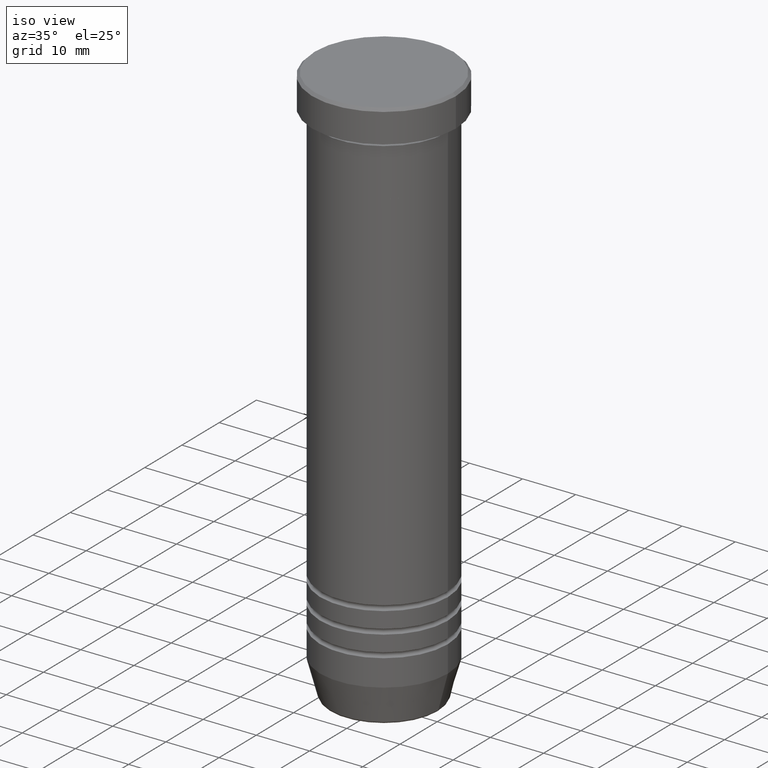
[diagram: clean part render]
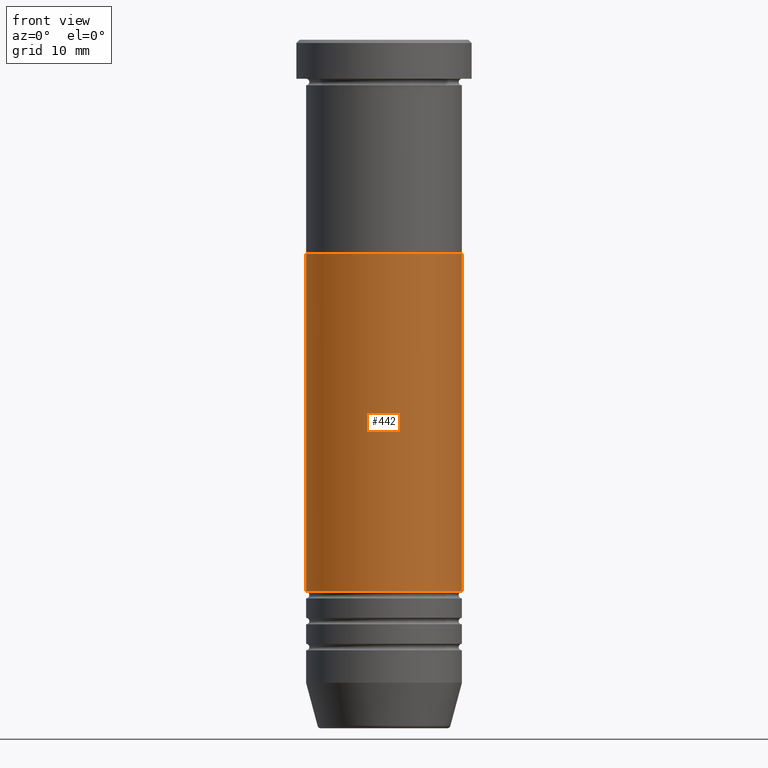
[diagram: tour spotlight — one face highlighted and labeled with its STEP entity id]
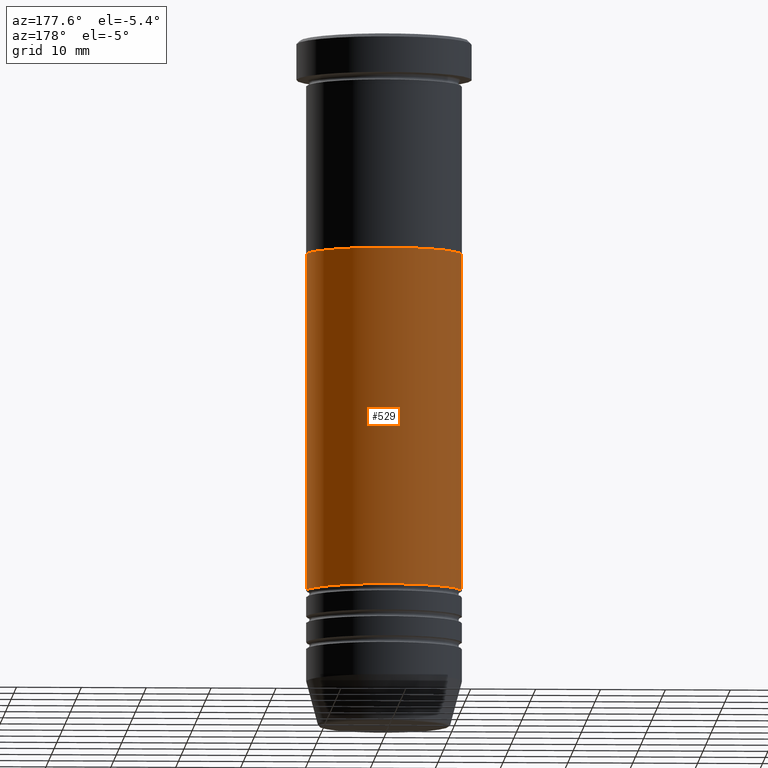
[diagram: tour spotlight — one face highlighted and labeled with its STEP entity id]
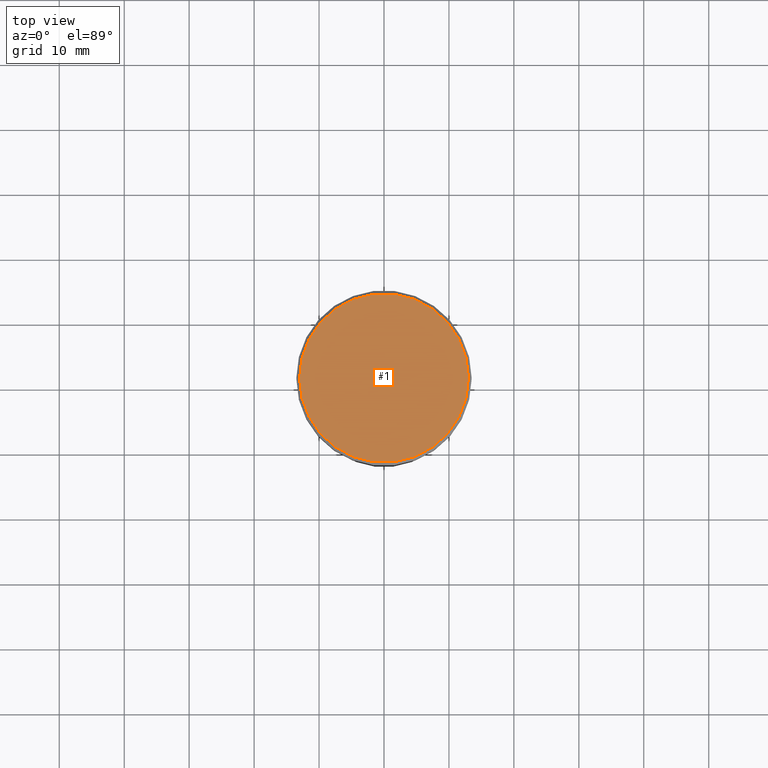
[diagram: tour spotlight — one face highlighted and labeled with its STEP entity id]
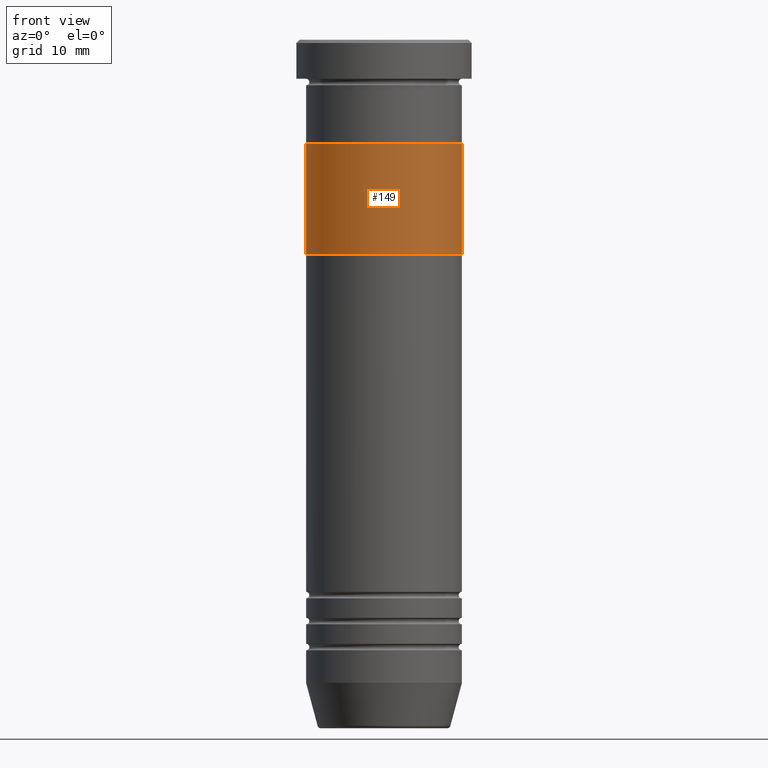
[diagram: tour spotlight — one face highlighted and labeled with its STEP entity id]
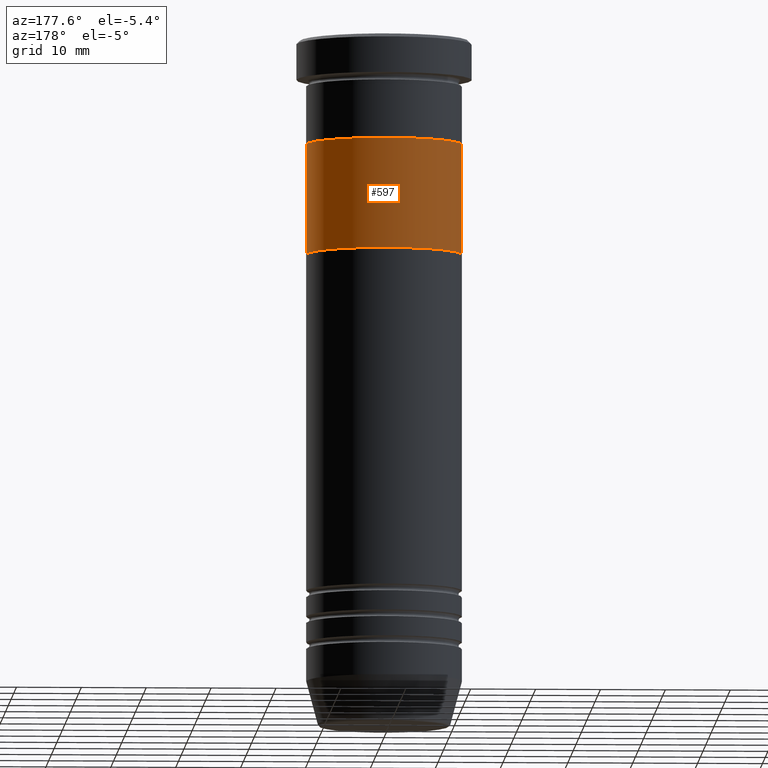
[diagram: tour spotlight — one face highlighted and labeled with its STEP entity id]
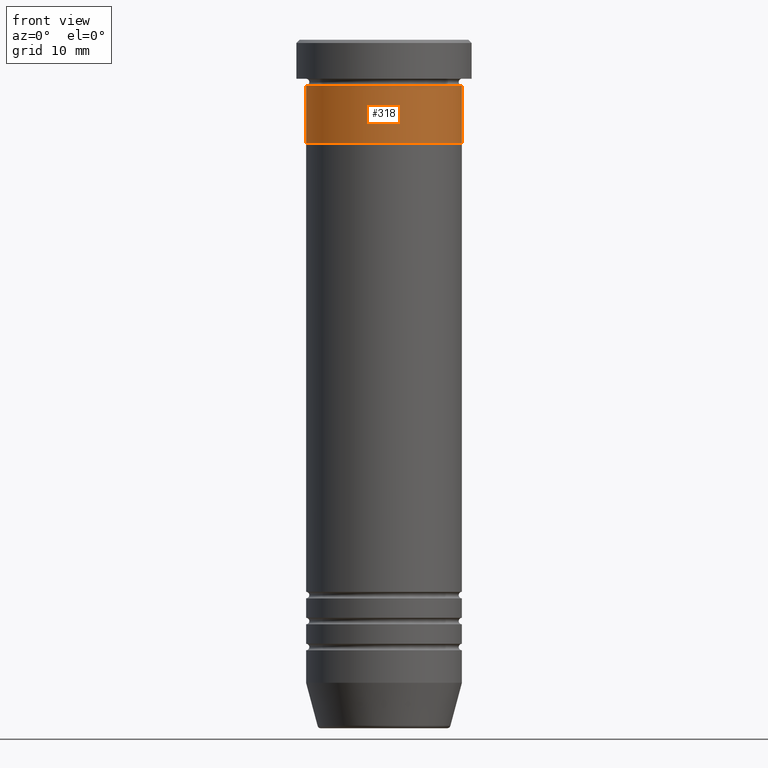
[diagram: tour spotlight — one face highlighted and labeled with its STEP entity id]
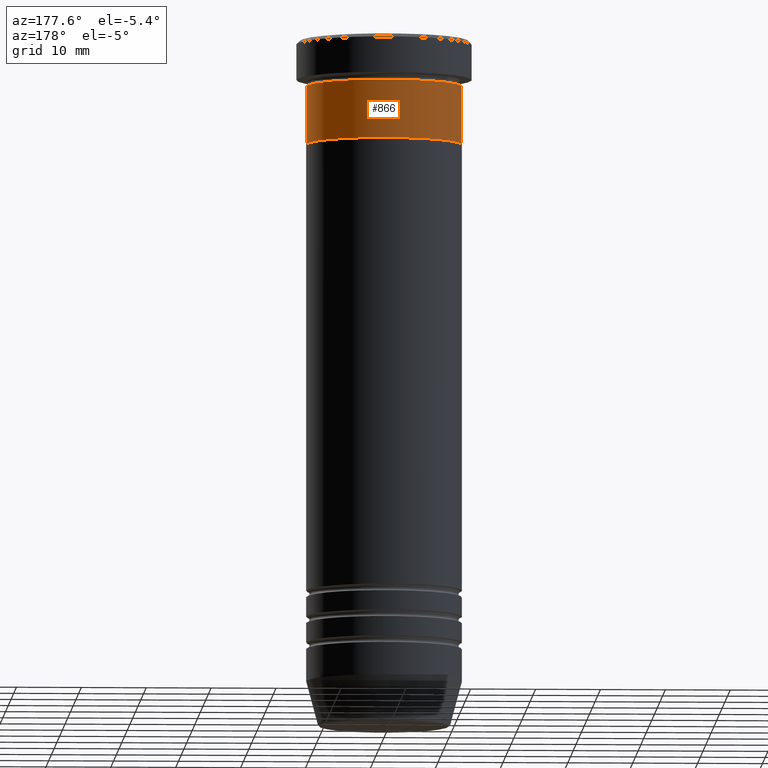
[diagram: tour spotlight — one face highlighted and labeled with its STEP entity id]
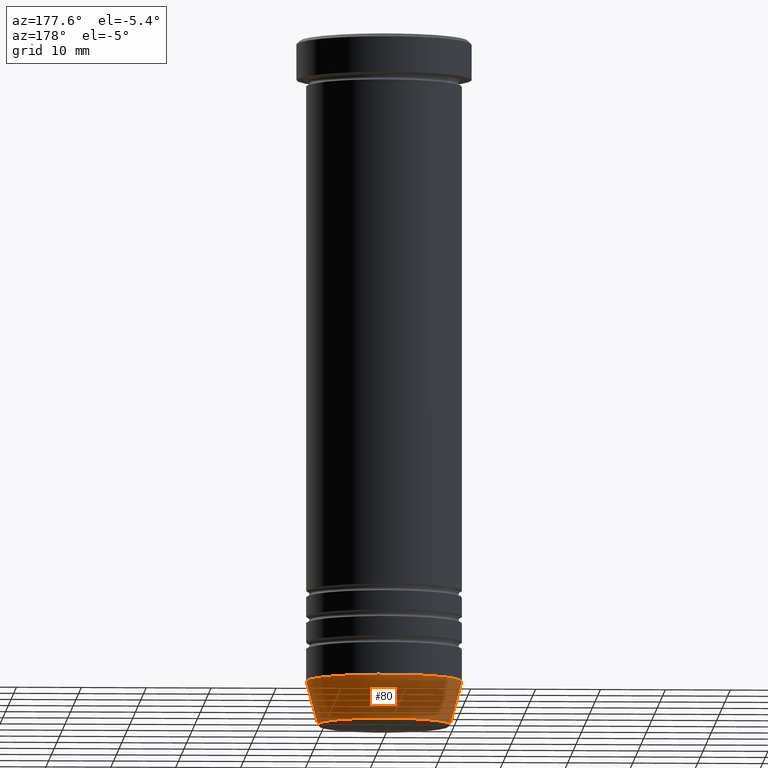
[diagram: tour spotlight — one face highlighted and labeled with its STEP entity id]
A machine part: a face-by-face anatomy tour. The part has 43 B-rep faces; the first image is the clean iso view, then the 8 largest visible faces are spotlighted one at a time (largest first), each with its STEP entity span.

Face 1 — front view, entity #442. In plain terms, the highlighted cylindrical surface (partial cylindrical patch) has radius 12 mm, axis along (-0, -0, 1).
Definition (entity closure, byte-faithful):
#16 = CARTESIAN_POINT ( 'NONE',  ( 11.99999999999999822, 0.000000000000000000, 0.000000000000000000 ) ) ;
#71 = AXIS2_PLACEMENT_3D ( 'NONE', #584, #397, #1001 ) ;
#83 = DIRECTION ( 'NONE',  ( 1.000000000000000000, 0.000000000000000000, 0.000000000000000000 ) ) ;
#84 = CIRCLE ( 'NONE', #71, 11.99999999999999467 ) ;
#93 = CARTESIAN_POINT ( 'NONE',  ( 0.000000000000000000, 0.000000000000000000, 0.000000000000000000 ) ) ;
#110 = EDGE_CURVE ( 'NONE', #992, #288, #843, .T. ) ;
#118 = CARTESIAN_POINT ( 'NONE',  ( 11.99999999999999467, 0.000000000000000000, -84.99999999999998579 ) ) ;
#136 = EDGE_CURVE ( 'NONE', #201, #992, #874, .T. ) ;
#201 = VERTEX_POINT ( 'NONE', #359 ) ;
#252 = DIRECTION ( 'NONE',  ( -0.000000000000000000, -0.000000000000000000, 1.000000000000000000 ) ) ;
#275 = ORIENTED_EDGE ( 'NONE', *, *, #136, .F. ) ;
#281 = CARTESIAN_POINT ( 'NONE',  ( 12.00000000000000178, 0.000000000000000000, -33.00000000000000000 ) ) ;
#288 = VERTEX_POINT ( 'NONE', #281 ) ;
#336 = EDGE_CURVE ( 'NONE', #201, #463, #84, .T. ) ;
#359 = CARTESIAN_POINT ( 'NONE',  ( -11.99999999999999467, 1.469576158976823553E-15, -84.99999999999998579 ) ) ;
#397 = DIRECTION ( 'NONE',  ( -0.000000000000000000, -0.000000000000000000, 1.000000000000000000 ) ) ;
#421 = AXIS2_PLACEMENT_3D ( 'NONE', #93, #252, #608 ) ;
#442 = ADVANCED_FACE ( 'NONE', ( #548 ), #892, .T. ) ;
#463 = VERTEX_POINT ( 'NONE', #118 ) ;
#494 = AXIS2_PLACEMENT_3D ( 'NONE', #956, #793, #83 ) ;
#528 = VECTOR ( 'NONE', #1148, 1000.000000000000000 ) ;
#548 = FACE_OUTER_BOUND ( 'NONE', #879, .T. ) ;
#584 = CARTESIAN_POINT ( 'NONE',  ( 0.000000000000000000, 0.000000000000000000, -84.99999999999998579 ) ) ;
#608 = DIRECTION ( 'NONE',  ( 1.000000000000000000, 0.000000000000000000, 0.000000000000000000 ) ) ;
#645 = CARTESIAN_POINT ( 'NONE',  ( -12.00000000000000178, 1.469576158976824144E-15, -33.00000000000000000 ) ) ;
#721 = ORIENTED_EDGE ( 'NONE', *, *, #336, .T. ) ;
#727 = ORIENTED_EDGE ( 'NONE', *, *, #110, .F. ) ;
#790 = DIRECTION ( 'NONE',  ( -0.000000000000000000, -0.000000000000000000, 1.000000000000000000 ) ) ;
#793 = DIRECTION ( 'NONE',  ( -0.000000000000000000, -0.000000000000000000, 1.000000000000000000 ) ) ;
#813 = EDGE_CURVE ( 'NONE', #463, #288, #882, .T. ) ;
#843 = CIRCLE ( 'NONE', #494, 12.00000000000000178 ) ;
#874 = LINE ( 'NONE', #880, #1078 ) ;
#879 = EDGE_LOOP ( 'NONE', ( #275, #721, #949, #727 ) ) ;
#880 = CARTESIAN_POINT ( 'NONE',  ( -11.99999999999999822, 1.469576158976823750E-15, 0.000000000000000000 ) ) ;
#882 = LINE ( 'NONE', #16, #528 ) ;
#892 = CYLINDRICAL_SURFACE ( 'NONE', #421, 11.99999999999999822 ) ;
#949 = ORIENTED_EDGE ( 'NONE', *, *, #813, .T. ) ;
#956 = CARTESIAN_POINT ( 'NONE',  ( 0.000000000000000000, 0.000000000000000000, -33.00000000000000000 ) ) ;
#992 = VERTEX_POINT ( 'NONE', #645 ) ;
#1001 = DIRECTION ( 'NONE',  ( 1.000000000000000000, 0.000000000000000000, 0.000000000000000000 ) ) ;
#1078 = VECTOR ( 'NONE', #790, 1000.000000000000000 ) ;
#1148 = DIRECTION ( 'NONE',  ( -0.000000000000000000, -0.000000000000000000, 1.000000000000000000 ) ) ;

Face 2 — auxiliary view, entity #529. In plain terms, the highlighted cylindrical surface (partial cylindrical patch) has radius 12 mm, axis along (-0, -0, 1).
Definition (entity closure, byte-faithful):
#16 = CARTESIAN_POINT ( 'NONE',  ( 11.99999999999999822, 0.000000000000000000, 0.000000000000000000 ) ) ;
#61 = CARTESIAN_POINT ( 'NONE',  ( 0.000000000000000000, 0.000000000000000000, -84.99999999999998579 ) ) ;
#118 = CARTESIAN_POINT ( 'NONE',  ( 11.99999999999999467, 0.000000000000000000, -84.99999999999998579 ) ) ;
#135 = CARTESIAN_POINT ( 'NONE',  ( 0.000000000000000000, 0.000000000000000000, 0.000000000000000000 ) ) ;
#136 = EDGE_CURVE ( 'NONE', #201, #992, #874, .T. ) ;
#201 = VERTEX_POINT ( 'NONE', #359 ) ;
#203 = FACE_OUTER_BOUND ( 'NONE', #292, .T. ) ;
#264 = AXIS2_PLACEMENT_3D ( 'NONE', #135, #486, #379 ) ;
#281 = CARTESIAN_POINT ( 'NONE',  ( 12.00000000000000178, 0.000000000000000000, -33.00000000000000000 ) ) ;
#288 = VERTEX_POINT ( 'NONE', #281 ) ;
#292 = EDGE_LOOP ( 'NONE', ( #997, #1015, #299, #835 ) ) ;
#295 = CYLINDRICAL_SURFACE ( 'NONE', #264, 11.99999999999999822 ) ;
#299 = ORIENTED_EDGE ( 'NONE', *, *, #507, .F. ) ;
#324 = CIRCLE ( 'NONE', #905, 11.99999999999999467 ) ;
#347 = EDGE_CURVE ( 'NONE', #463, #201, #324, .T. ) ;
#359 = CARTESIAN_POINT ( 'NONE',  ( -11.99999999999999467, 1.469576158976823553E-15, -84.99999999999998579 ) ) ;
#379 = DIRECTION ( 'NONE',  ( 1.000000000000000000, 0.000000000000000000, 0.000000000000000000 ) ) ;
#405 = DIRECTION ( 'NONE',  ( -0.000000000000000000, -0.000000000000000000, 1.000000000000000000 ) ) ;
#407 = AXIS2_PLACEMENT_3D ( 'NONE', #1109, #405, #1010 ) ;
#463 = VERTEX_POINT ( 'NONE', #118 ) ;
#486 = DIRECTION ( 'NONE',  ( -0.000000000000000000, -0.000000000000000000, 1.000000000000000000 ) ) ;
#507 = EDGE_CURVE ( 'NONE', #288, #992, #710, .T. ) ;
#528 = VECTOR ( 'NONE', #1148, 1000.000000000000000 ) ;
#529 = ADVANCED_FACE ( 'NONE', ( #203 ), #295, .T. ) ;
#556 = DIRECTION ( 'NONE',  ( -0.000000000000000000, -0.000000000000000000, 1.000000000000000000 ) ) ;
#645 = CARTESIAN_POINT ( 'NONE',  ( -12.00000000000000178, 1.469576158976824144E-15, -33.00000000000000000 ) ) ;
#710 = CIRCLE ( 'NONE', #407, 12.00000000000000178 ) ;
#790 = DIRECTION ( 'NONE',  ( -0.000000000000000000, -0.000000000000000000, 1.000000000000000000 ) ) ;
#813 = EDGE_CURVE ( 'NONE', #463, #288, #882, .T. ) ;
#820 = DIRECTION ( 'NONE',  ( 1.000000000000000000, 0.000000000000000000, 0.000000000000000000 ) ) ;
#835 = ORIENTED_EDGE ( 'NONE', *, *, #813, .F. ) ;
#874 = LINE ( 'NONE', #880, #1078 ) ;
#880 = CARTESIAN_POINT ( 'NONE',  ( -11.99999999999999822, 1.469576158976823750E-15, 0.000000000000000000 ) ) ;
#882 = LINE ( 'NONE', #16, #528 ) ;
#905 = AXIS2_PLACEMENT_3D ( 'NONE', #61, #556, #820 ) ;
#992 = VERTEX_POINT ( 'NONE', #645 ) ;
#997 = ORIENTED_EDGE ( 'NONE', *, *, #347, .T. ) ;
#1010 = DIRECTION ( 'NONE',  ( 1.000000000000000000, 0.000000000000000000, 0.000000000000000000 ) ) ;
#1015 = ORIENTED_EDGE ( 'NONE', *, *, #136, .T. ) ;
#1078 = VECTOR ( 'NONE', #790, 1000.000000000000000 ) ;
#1109 = CARTESIAN_POINT ( 'NONE',  ( 0.000000000000000000, 0.000000000000000000, -33.00000000000000000 ) ) ;
#1148 = DIRECTION ( 'NONE',  ( -0.000000000000000000, -0.000000000000000000, 1.000000000000000000 ) ) ;

Face 3 — top view, entity #1. In plain terms, the highlighted planar face has unit normal (0, -0, 1).
Definition (entity closure, byte-faithful):
#1 = ADVANCED_FACE ( 'NONE', ( #65 ), #940, .T. ) ;
#10 = AXIS2_PLACEMENT_3D ( 'NONE', #671, #1118, #621 ) ;
#55 = CIRCLE ( 'NONE', #802, 12.99999999999999289 ) ;
#65 = FACE_OUTER_BOUND ( 'NONE', #1128, .T. ) ;
#153 = EDGE_CURVE ( 'NONE', #911, #505, #55, .T. ) ;
#160 = CARTESIAN_POINT ( 'NONE',  ( -12.99999999999999289, 0.000000000000000000, 0.000000000000000000 ) ) ;
#458 = EDGE_CURVE ( 'NONE', #505, #911, #546, .T. ) ;
#505 = VERTEX_POINT ( 'NONE', #742 ) ;
#546 = CIRCLE ( 'NONE', #1142, 12.99999999999999289 ) ;
#621 = DIRECTION ( 'NONE',  ( 1.000000000000000000, 0.000000000000000000, 0.000000000000000000 ) ) ;
#671 = CARTESIAN_POINT ( 'NONE',  ( 0.000000000000000000, 0.000000000000000000, 0.000000000000000000 ) ) ;
#692 = DIRECTION ( 'NONE',  ( -0.000000000000000000, -0.000000000000000000, 1.000000000000000000 ) ) ;
#740 = ORIENTED_EDGE ( 'NONE', *, *, #458, .T. ) ;
#742 = CARTESIAN_POINT ( 'NONE',  ( 12.99999999999999289, 1.622657008870242488E-15, 0.000000000000000000 ) ) ;
#770 = CARTESIAN_POINT ( 'NONE',  ( 0.000000000000000000, 0.000000000000000000, 0.000000000000000000 ) ) ;
#802 = AXIS2_PLACEMENT_3D ( 'NONE', #770, #692, #1127 ) ;
#828 = DIRECTION ( 'NONE',  ( -0.000000000000000000, -0.000000000000000000, 1.000000000000000000 ) ) ;
#839 = DIRECTION ( 'NONE',  ( 1.000000000000000000, 0.000000000000000000, 0.000000000000000000 ) ) ;
#911 = VERTEX_POINT ( 'NONE', #160 ) ;
#940 = PLANE ( 'NONE',  #10 ) ;
#1086 = CARTESIAN_POINT ( 'NONE',  ( 0.000000000000000000, 0.000000000000000000, 0.000000000000000000 ) ) ;
#1097 = ORIENTED_EDGE ( 'NONE', *, *, #153, .T. ) ;
#1118 = DIRECTION ( 'NONE',  ( 0.000000000000000000, -0.000000000000000000, 1.000000000000000000 ) ) ;
#1127 = DIRECTION ( 'NONE',  ( 1.000000000000000000, 0.000000000000000000, 0.000000000000000000 ) ) ;
#1128 = EDGE_LOOP ( 'NONE', ( #1097, #740 ) ) ;
#1142 = AXIS2_PLACEMENT_3D ( 'NONE', #1086, #828, #839 ) ;

Face 4 — front view, entity #149. In plain terms, the highlighted cylindrical surface (partial cylindrical patch) has radius 12 mm, axis along (-0, -0, 1).
Definition (entity closure, byte-faithful):
#51 = VERTEX_POINT ( 'NONE', #431 ) ;
#56 = AXIS2_PLACEMENT_3D ( 'NONE', #157, #247, #335 ) ;
#57 = ORIENTED_EDGE ( 'NONE', *, *, #1135, .T. ) ;
#70 = CYLINDRICAL_SURFACE ( 'NONE', #600, 12.00000000000000178 ) ;
#82 = DIRECTION ( 'NONE',  ( 1.000000000000000000, 0.000000000000000000, 0.000000000000000000 ) ) ;
#132 = ORIENTED_EDGE ( 'NONE', *, *, #569, .T. ) ;
#145 = LINE ( 'NONE', #853, #285 ) ;
#149 = ADVANCED_FACE ( 'NONE', ( #700 ), #70, .T. ) ;
#157 = CARTESIAN_POINT ( 'NONE',  ( 0.000000000000000000, 0.000000000000000000, -33.00000000000000000 ) ) ;
#199 = ORIENTED_EDGE ( 'NONE', *, *, #200, .F. ) ;
#200 = EDGE_CURVE ( 'NONE', #51, #560, #346, .T. ) ;
#207 = ORIENTED_EDGE ( 'NONE', *, *, #624, .F. ) ;
#228 = VERTEX_POINT ( 'NONE', #456 ) ;
#247 = DIRECTION ( 'NONE',  ( 0.000000000000000000, 0.000000000000000000, -1.000000000000000000 ) ) ;
#271 = EDGE_LOOP ( 'NONE', ( #199, #207, #57, #132 ) ) ;
#285 = VECTOR ( 'NONE', #765, 1000.000000000000000 ) ;
#310 = CARTESIAN_POINT ( 'NONE',  ( -12.00000000000000178, 1.469576158976824144E-15, -16.00000000000000000 ) ) ;
#335 = DIRECTION ( 'NONE',  ( -1.000000000000000000, 0.000000000000000000, 0.000000000000000000 ) ) ;
#338 = CIRCLE ( 'NONE', #826, 12.00000000000000178 ) ;
#346 = LINE ( 'NONE', #978, #406 ) ;
#387 = VERTEX_POINT ( 'NONE', #707 ) ;
#406 = VECTOR ( 'NONE', #1052, 1000.000000000000000 ) ;
#431 = CARTESIAN_POINT ( 'NONE',  ( -12.00000000000000178, 1.469576158976824144E-15, -33.00000000000000000 ) ) ;
#456 = CARTESIAN_POINT ( 'NONE',  ( 12.00000000000000178, 0.000000000000000000, -16.00000000000000000 ) ) ;
#525 = DIRECTION ( 'NONE',  ( -0.000000000000000000, -0.000000000000000000, 1.000000000000000000 ) ) ;
#560 = VERTEX_POINT ( 'NONE', #310 ) ;
#569 = EDGE_CURVE ( 'NONE', #228, #560, #338, .T. ) ;
#600 = AXIS2_PLACEMENT_3D ( 'NONE', #947, #525, #82 ) ;
#624 = EDGE_CURVE ( 'NONE', #387, #51, #1041, .T. ) ;
#700 = FACE_OUTER_BOUND ( 'NONE', #271, .T. ) ;
#707 = CARTESIAN_POINT ( 'NONE',  ( 12.00000000000000178, 0.000000000000000000, -33.00000000000000000 ) ) ;
#765 = DIRECTION ( 'NONE',  ( -0.000000000000000000, -0.000000000000000000, 1.000000000000000000 ) ) ;
#826 = AXIS2_PLACEMENT_3D ( 'NONE', #1017, #916, #902 ) ;
#853 = CARTESIAN_POINT ( 'NONE',  ( 12.00000000000000178, 0.000000000000000000, -33.00000000000000000 ) ) ;
#902 = DIRECTION ( 'NONE',  ( -1.000000000000000000, 0.000000000000000000, 0.000000000000000000 ) ) ;
#916 = DIRECTION ( 'NONE',  ( 0.000000000000000000, 0.000000000000000000, -1.000000000000000000 ) ) ;
#947 = CARTESIAN_POINT ( 'NONE',  ( 0.000000000000000000, 0.000000000000000000, -33.00000000000000000 ) ) ;
#978 = CARTESIAN_POINT ( 'NONE',  ( -12.00000000000000178, 1.469576158976824144E-15, -33.00000000000000000 ) ) ;
#1017 = CARTESIAN_POINT ( 'NONE',  ( 0.000000000000000000, 0.000000000000000000, -16.00000000000000000 ) ) ;
#1041 = CIRCLE ( 'NONE', #56, 12.00000000000000178 ) ;
#1052 = DIRECTION ( 'NONE',  ( -0.000000000000000000, -0.000000000000000000, 1.000000000000000000 ) ) ;
#1135 = EDGE_CURVE ( 'NONE', #387, #228, #145, .T. ) ;

Face 5 — auxiliary view, entity #597. In plain terms, the highlighted cylindrical surface (partial cylindrical patch) has radius 12 mm, axis along (-0, -0, 1).
Definition (entity closure, byte-faithful):
#5 = DIRECTION ( 'NONE',  ( -1.000000000000000000, 0.000000000000000000, 0.000000000000000000 ) ) ;
#51 = VERTEX_POINT ( 'NONE', #431 ) ;
#85 = EDGE_CURVE ( 'NONE', #560, #228, #1119, .T. ) ;
#139 = DIRECTION ( 'NONE',  ( 1.000000000000000000, 0.000000000000000000, 0.000000000000000000 ) ) ;
#145 = LINE ( 'NONE', #853, #285 ) ;
#200 = EDGE_CURVE ( 'NONE', #51, #560, #346, .T. ) ;
#219 = CYLINDRICAL_SURFACE ( 'NONE', #945, 12.00000000000000178 ) ;
#228 = VERTEX_POINT ( 'NONE', #456 ) ;
#255 = DIRECTION ( 'NONE',  ( 0.000000000000000000, 0.000000000000000000, -1.000000000000000000 ) ) ;
#285 = VECTOR ( 'NONE', #765, 1000.000000000000000 ) ;
#293 = ORIENTED_EDGE ( 'NONE', *, *, #200, .T. ) ;
#301 = FACE_OUTER_BOUND ( 'NONE', #460, .T. ) ;
#310 = CARTESIAN_POINT ( 'NONE',  ( -12.00000000000000178, 1.469576158976824144E-15, -16.00000000000000000 ) ) ;
#339 = DIRECTION ( 'NONE',  ( 0.000000000000000000, 0.000000000000000000, -1.000000000000000000 ) ) ;
#346 = LINE ( 'NONE', #978, #406 ) ;
#355 = DIRECTION ( 'NONE',  ( -1.000000000000000000, 0.000000000000000000, 0.000000000000000000 ) ) ;
#362 = CARTESIAN_POINT ( 'NONE',  ( 0.000000000000000000, 0.000000000000000000, -33.00000000000000000 ) ) ;
#387 = VERTEX_POINT ( 'NONE', #707 ) ;
#406 = VECTOR ( 'NONE', #1052, 1000.000000000000000 ) ;
#431 = CARTESIAN_POINT ( 'NONE',  ( -12.00000000000000178, 1.469576158976824144E-15, -33.00000000000000000 ) ) ;
#456 = CARTESIAN_POINT ( 'NONE',  ( 12.00000000000000178, 0.000000000000000000, -16.00000000000000000 ) ) ;
#460 = EDGE_LOOP ( 'NONE', ( #566, #293, #1062, #1034 ) ) ;
#496 = AXIS2_PLACEMENT_3D ( 'NONE', #362, #339, #355 ) ;
#533 = CARTESIAN_POINT ( 'NONE',  ( 0.000000000000000000, 0.000000000000000000, -16.00000000000000000 ) ) ;
#560 = VERTEX_POINT ( 'NONE', #310 ) ;
#566 = ORIENTED_EDGE ( 'NONE', *, *, #764, .F. ) ;
#577 = CARTESIAN_POINT ( 'NONE',  ( 0.000000000000000000, 0.000000000000000000, -33.00000000000000000 ) ) ;
#597 = ADVANCED_FACE ( 'NONE', ( #301 ), #219, .T. ) ;
#707 = CARTESIAN_POINT ( 'NONE',  ( 12.00000000000000178, 0.000000000000000000, -33.00000000000000000 ) ) ;
#764 = EDGE_CURVE ( 'NONE', #51, #387, #845, .T. ) ;
#765 = DIRECTION ( 'NONE',  ( -0.000000000000000000, -0.000000000000000000, 1.000000000000000000 ) ) ;
#845 = CIRCLE ( 'NONE', #496, 12.00000000000000178 ) ;
#853 = CARTESIAN_POINT ( 'NONE',  ( 12.00000000000000178, 0.000000000000000000, -33.00000000000000000 ) ) ;
#921 = DIRECTION ( 'NONE',  ( -0.000000000000000000, -0.000000000000000000, 1.000000000000000000 ) ) ;
#945 = AXIS2_PLACEMENT_3D ( 'NONE', #577, #921, #139 ) ;
#978 = CARTESIAN_POINT ( 'NONE',  ( -12.00000000000000178, 1.469576158976824144E-15, -33.00000000000000000 ) ) ;
#1034 = ORIENTED_EDGE ( 'NONE', *, *, #1135, .F. ) ;
#1052 = DIRECTION ( 'NONE',  ( -0.000000000000000000, -0.000000000000000000, 1.000000000000000000 ) ) ;
#1059 = AXIS2_PLACEMENT_3D ( 'NONE', #533, #255, #5 ) ;
#1062 = ORIENTED_EDGE ( 'NONE', *, *, #85, .T. ) ;
#1119 = CIRCLE ( 'NONE', #1059, 12.00000000000000178 ) ;
#1135 = EDGE_CURVE ( 'NONE', #387, #228, #145, .T. ) ;

Face 6 — front view, entity #318. In plain terms, the highlighted cylindrical surface (partial cylindrical patch) has radius 12 mm, axis along (-0, -0, 1).
Definition (entity closure, byte-faithful):
#48 = DIRECTION ( 'NONE',  ( -0.000000000000000000, -0.000000000000000000, 1.000000000000000000 ) ) ;
#74 = VECTOR ( 'NONE', #115, 1000.000000000000000 ) ;
#112 = DIRECTION ( 'NONE',  ( -0.000000000000000000, -0.000000000000000000, 1.000000000000000000 ) ) ;
#115 = DIRECTION ( 'NONE',  ( -0.000000000000000000, -0.000000000000000000, 1.000000000000000000 ) ) ;
#138 = CARTESIAN_POINT ( 'NONE',  ( 12.00000000000000000, 0.000000000000000000, 0.000000000000000000 ) ) ;
#144 = ORIENTED_EDGE ( 'NONE', *, *, #881, .F. ) ;
#211 = CARTESIAN_POINT ( 'NONE',  ( -12.00000000000000000, 1.469576158976823947E-15, -6.999999999999999112 ) ) ;
#229 = LINE ( 'NONE', #138, #1083 ) ;
#286 = ORIENTED_EDGE ( 'NONE', *, *, #482, .T. ) ;
#287 = LINE ( 'NONE', #467, #74 ) ;
#296 = DIRECTION ( 'NONE',  ( 1.000000000000000000, 0.000000000000000000, 0.000000000000000000 ) ) ;
#318 = ADVANCED_FACE ( 'NONE', ( #473 ), #390, .T. ) ;
#352 = VERTEX_POINT ( 'NONE', #211 ) ;
#390 = CYLINDRICAL_SURFACE ( 'NONE', #709, 12.00000000000000000 ) ;
#467 = CARTESIAN_POINT ( 'NONE',  ( -12.00000000000000000, 1.469576158976823947E-15, 0.000000000000000000 ) ) ;
#473 = FACE_OUTER_BOUND ( 'NONE', #477, .T. ) ;
#477 = EDGE_LOOP ( 'NONE', ( #144, #286, #895, #591 ) ) ;
#482 = EDGE_CURVE ( 'NONE', #1057, #797, #1122, .T. ) ;
#491 = DIRECTION ( 'NONE',  ( 1.000000000000000000, 0.000000000000000000, 0.000000000000000000 ) ) ;
#591 = ORIENTED_EDGE ( 'NONE', *, *, #1110, .F. ) ;
#595 = CARTESIAN_POINT ( 'NONE',  ( 0.000000000000000000, 0.000000000000000000, -6.999999999999999112 ) ) ;
#612 = CARTESIAN_POINT ( 'NONE',  ( 12.00000000000000000, 0.000000000000000000, -16.00000000000000000 ) ) ;
#709 = AXIS2_PLACEMENT_3D ( 'NONE', #1092, #112, #296 ) ;
#732 = AXIS2_PLACEMENT_3D ( 'NONE', #1077, #48, #1099 ) ;
#797 = VERTEX_POINT ( 'NONE', #612 ) ;
#838 = DIRECTION ( 'NONE',  ( -0.000000000000000000, -0.000000000000000000, 1.000000000000000000 ) ) ;
#846 = AXIS2_PLACEMENT_3D ( 'NONE', #595, #838, #491 ) ;
#862 = CIRCLE ( 'NONE', #846, 12.00000000000000000 ) ;
#881 = EDGE_CURVE ( 'NONE', #1057, #352, #287, .T. ) ;
#895 = ORIENTED_EDGE ( 'NONE', *, *, #1095, .T. ) ;
#920 = CARTESIAN_POINT ( 'NONE',  ( -12.00000000000000000, 1.469576158976823947E-15, -16.00000000000000000 ) ) ;
#1032 = DIRECTION ( 'NONE',  ( -0.000000000000000000, -0.000000000000000000, 1.000000000000000000 ) ) ;
#1057 = VERTEX_POINT ( 'NONE', #920 ) ;
#1077 = CARTESIAN_POINT ( 'NONE',  ( 0.000000000000000000, 0.000000000000000000, -16.00000000000000000 ) ) ;
#1083 = VECTOR ( 'NONE', #1032, 1000.000000000000000 ) ;
#1088 = VERTEX_POINT ( 'NONE', #1106 ) ;
#1092 = CARTESIAN_POINT ( 'NONE',  ( 0.000000000000000000, 0.000000000000000000, 0.000000000000000000 ) ) ;
#1095 = EDGE_CURVE ( 'NONE', #797, #1088, #229, .T. ) ;
#1099 = DIRECTION ( 'NONE',  ( 1.000000000000000000, 0.000000000000000000, 0.000000000000000000 ) ) ;
#1106 = CARTESIAN_POINT ( 'NONE',  ( 12.00000000000000000, 0.000000000000000000, -6.999999999999999112 ) ) ;
#1110 = EDGE_CURVE ( 'NONE', #352, #1088, #862, .T. ) ;
#1122 = CIRCLE ( 'NONE', #732, 12.00000000000000000 ) ;

Face 7 — auxiliary view, entity #866. In plain terms, the highlighted cylindrical surface (partial cylindrical patch) has radius 12 mm, axis along (-0, -0, 1).
Definition (entity closure, byte-faithful):
#74 = VECTOR ( 'NONE', #115, 1000.000000000000000 ) ;
#102 = AXIS2_PLACEMENT_3D ( 'NONE', #187, #659, #272 ) ;
#115 = DIRECTION ( 'NONE',  ( -0.000000000000000000, -0.000000000000000000, 1.000000000000000000 ) ) ;
#138 = CARTESIAN_POINT ( 'NONE',  ( 12.00000000000000000, 0.000000000000000000, 0.000000000000000000 ) ) ;
#179 = DIRECTION ( 'NONE',  ( -0.000000000000000000, -0.000000000000000000, 1.000000000000000000 ) ) ;
#187 = CARTESIAN_POINT ( 'NONE',  ( 0.000000000000000000, 0.000000000000000000, -16.00000000000000000 ) ) ;
#211 = CARTESIAN_POINT ( 'NONE',  ( -12.00000000000000000, 1.469576158976823947E-15, -6.999999999999999112 ) ) ;
#229 = LINE ( 'NONE', #138, #1083 ) ;
#262 = DIRECTION ( 'NONE',  ( 1.000000000000000000, 0.000000000000000000, 0.000000000000000000 ) ) ;
#272 = DIRECTION ( 'NONE',  ( 1.000000000000000000, 0.000000000000000000, 0.000000000000000000 ) ) ;
#287 = LINE ( 'NONE', #467, #74 ) ;
#352 = VERTEX_POINT ( 'NONE', #211 ) ;
#376 = FACE_OUTER_BOUND ( 'NONE', #899, .T. ) ;
#401 = DIRECTION ( 'NONE',  ( 1.000000000000000000, 0.000000000000000000, 0.000000000000000000 ) ) ;
#454 = AXIS2_PLACEMENT_3D ( 'NONE', #1056, #179, #262 ) ;
#467 = CARTESIAN_POINT ( 'NONE',  ( -12.00000000000000000, 1.469576158976823947E-15, 0.000000000000000000 ) ) ;
#490 = ORIENTED_EDGE ( 'NONE', *, *, #1095, .F. ) ;
#497 = ORIENTED_EDGE ( 'NONE', *, *, #819, .F. ) ;
#570 = CIRCLE ( 'NONE', #102, 12.00000000000000000 ) ;
#581 = ORIENTED_EDGE ( 'NONE', *, *, #1037, .T. ) ;
#612 = CARTESIAN_POINT ( 'NONE',  ( 12.00000000000000000, 0.000000000000000000, -16.00000000000000000 ) ) ;
#659 = DIRECTION ( 'NONE',  ( -0.000000000000000000, -0.000000000000000000, 1.000000000000000000 ) ) ;
#729 = CARTESIAN_POINT ( 'NONE',  ( 0.000000000000000000, 0.000000000000000000, 0.000000000000000000 ) ) ;
#733 = AXIS2_PLACEMENT_3D ( 'NONE', #729, #914, #401 ) ;
#797 = VERTEX_POINT ( 'NONE', #612 ) ;
#819 = EDGE_CURVE ( 'NONE', #1088, #352, #1082, .T. ) ;
#866 = ADVANCED_FACE ( 'NONE', ( #376 ), #1096, .T. ) ;
#881 = EDGE_CURVE ( 'NONE', #1057, #352, #287, .T. ) ;
#899 = EDGE_LOOP ( 'NONE', ( #581, #1105, #497, #490 ) ) ;
#914 = DIRECTION ( 'NONE',  ( -0.000000000000000000, -0.000000000000000000, 1.000000000000000000 ) ) ;
#920 = CARTESIAN_POINT ( 'NONE',  ( -12.00000000000000000, 1.469576158976823947E-15, -16.00000000000000000 ) ) ;
#1032 = DIRECTION ( 'NONE',  ( -0.000000000000000000, -0.000000000000000000, 1.000000000000000000 ) ) ;
#1037 = EDGE_CURVE ( 'NONE', #797, #1057, #570, .T. ) ;
#1056 = CARTESIAN_POINT ( 'NONE',  ( 0.000000000000000000, 0.000000000000000000, -6.999999999999999112 ) ) ;
#1057 = VERTEX_POINT ( 'NONE', #920 ) ;
#1082 = CIRCLE ( 'NONE', #454, 12.00000000000000000 ) ;
#1083 = VECTOR ( 'NONE', #1032, 1000.000000000000000 ) ;
#1088 = VERTEX_POINT ( 'NONE', #1106 ) ;
#1095 = EDGE_CURVE ( 'NONE', #797, #1088, #229, .T. ) ;
#1096 = CYLINDRICAL_SURFACE ( 'NONE', #733, 12.00000000000000000 ) ;
#1105 = ORIENTED_EDGE ( 'NONE', *, *, #881, .T. ) ;
#1106 = CARTESIAN_POINT ( 'NONE',  ( 12.00000000000000000, 0.000000000000000000, -6.999999999999999112 ) ) ;

Face 8 — auxiliary view, entity #80. In plain terms, the highlighted conical surface has half-angle 15 deg.
Definition (entity closure, byte-faithful):
#26 = DIRECTION ( 'NONE',  ( -0.2588190451025214611, 3.169619151431774186E-17, 0.9659258262890679791 ) ) ;
#32 = DIRECTION ( 'NONE',  ( -0.000000000000000000, -0.000000000000000000, 1.000000000000000000 ) ) ;
#80 = ADVANCED_FACE ( 'NONE', ( #678 ), #690, .T. ) ;
#122 = AXIS2_PLACEMENT_3D ( 'NONE', #734, #208, #562 ) ;
#172 = EDGE_LOOP ( 'NONE', ( #575, #922, #918, #580 ) ) ;
#178 = CARTESIAN_POINT ( 'NONE',  ( 0.000000000000000000, 0.000000000000000000, -106.0000000000000000 ) ) ;
#208 = DIRECTION ( 'NONE',  ( -0.000000000000000000, -0.000000000000000000, 1.000000000000000000 ) ) ;
#249 = EDGE_CURVE ( 'NONE', #837, #485, #970, .T. ) ;
#312 = CARTESIAN_POINT ( 'NONE',  ( 12.00000000000000178, 0.000000000000000000, -98.99999999999998579 ) ) ;
#313 = CARTESIAN_POINT ( 'NONE',  ( 10.22365507213718594, 0.000000000000000000, -105.6294095225512564 ) ) ;
#317 = CARTESIAN_POINT ( 'NONE',  ( 0.000000000000000000, 0.000000000000000000, -105.6294095225512564 ) ) ;
#323 = VECTOR ( 'NONE', #26, 1000.000000000000114 ) ;
#342 = VERTEX_POINT ( 'NONE', #312 ) ;
#353 = EDGE_CURVE ( 'NONE', #900, #837, #961, .T. ) ;
#363 = DIRECTION ( 'NONE',  ( 0.2588190451025214611, 0.000000000000000000, 0.9659258262890679791 ) ) ;
#485 = VERTEX_POINT ( 'NONE', #755 ) ;
#538 = CARTESIAN_POINT ( 'NONE',  ( -10.22365507213718594, 1.360806402472382547E-15, -105.6294095225512564 ) ) ;
#541 = EDGE_CURVE ( 'NONE', #342, #485, #803, .T. ) ;
#543 = AXIS2_PLACEMENT_3D ( 'NONE', #178, #611, #1049 ) ;
#562 = DIRECTION ( 'NONE',  ( 1.000000000000000000, 0.000000000000000000, 0.000000000000000000 ) ) ;
#575 = ORIENTED_EDGE ( 'NONE', *, *, #353, .T. ) ;
#580 = ORIENTED_EDGE ( 'NONE', *, *, #969, .F. ) ;
#611 = DIRECTION ( 'NONE',  ( -0.000000000000000000, -0.000000000000000000, 1.000000000000000000 ) ) ;
#620 = VECTOR ( 'NONE', #363, 1000.000000000000114 ) ;
#636 = CARTESIAN_POINT ( 'NONE',  ( 10.12435565298213547, 0.000000000000000000, -106.0000000000000000 ) ) ;
#678 = FACE_OUTER_BOUND ( 'NONE', #172, .T. ) ;
#690 = CONICAL_SURFACE ( 'NONE', #543, 10.12435565298213547, 0.2617993877991502405 ) ;
#734 = CARTESIAN_POINT ( 'NONE',  ( 0.000000000000000000, 0.000000000000000000, -98.99999999999998579 ) ) ;
#741 = LINE ( 'NONE', #636, #620 ) ;
#755 = CARTESIAN_POINT ( 'NONE',  ( -12.00000000000000178, 1.469576158976824144E-15, -98.99999999999998579 ) ) ;
#767 = AXIS2_PLACEMENT_3D ( 'NONE', #317, #32, #1022 ) ;
#803 = CIRCLE ( 'NONE', #122, 12.00000000000000178 ) ;
#815 = CARTESIAN_POINT ( 'NONE',  ( -10.12435565298213547, 1.239875974385398349E-15, -106.0000000000000000 ) ) ;
#837 = VERTEX_POINT ( 'NONE', #538 ) ;
#900 = VERTEX_POINT ( 'NONE', #313 ) ;
#918 = ORIENTED_EDGE ( 'NONE', *, *, #541, .F. ) ;
#922 = ORIENTED_EDGE ( 'NONE', *, *, #249, .T. ) ;
#961 = CIRCLE ( 'NONE', #767, 10.22365507213718594 ) ;
#969 = EDGE_CURVE ( 'NONE', #900, #342, #741, .T. ) ;
#970 = LINE ( 'NONE', #815, #323 ) ;
#1022 = DIRECTION ( 'NONE',  ( -1.000000000000000000, 0.000000000000000000, 0.000000000000000000 ) ) ;
#1049 = DIRECTION ( 'NONE',  ( 1.000000000000000000, 0.000000000000000000, 0.000000000000000000 ) ) ;